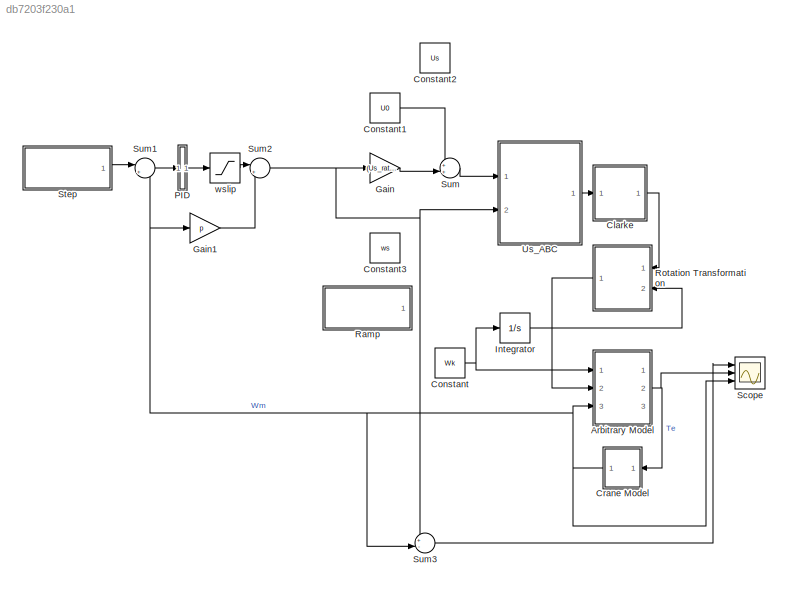
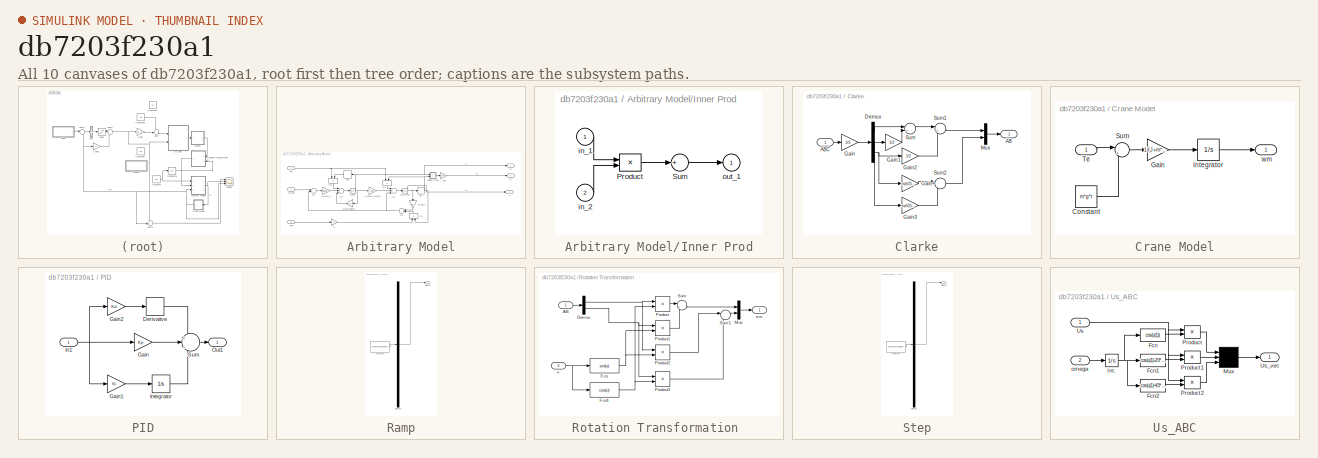
[diagram: thumbnail index - all 10 canvases of the model, root first then tree order]
MODEL slx_db7203f230a1
KIND model
CONFIG AbsTol = auto
CONFIG EnableMultiTasking = off
CONFIG FixedStep = auto
CONFIG MaxStep = auto
CONFIG MinStep = auto
CONFIG RelTol = 1e-3
CONFIG SampleTimeConstraint = Unconstrained
CONFIG Solver = VariableStepAuto
CONFIG SolverName = VariableStepAuto
CONFIG StartTime = 0.0
CONFIG StopTime = runtime
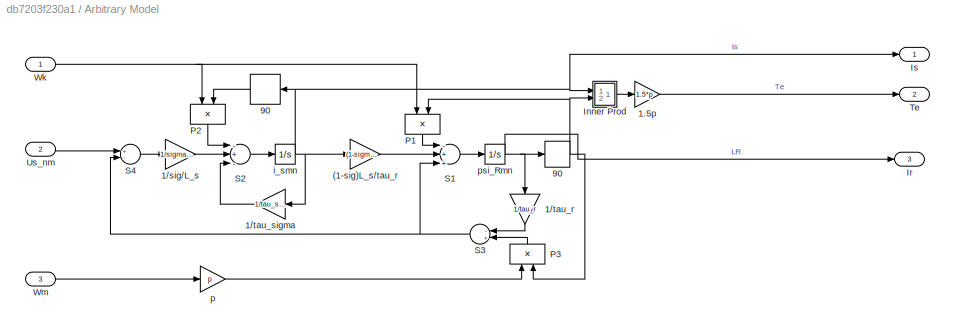
BLOCK [SubSystem] Arbitrary Model
  Ports = [3, 3]
  RequestExecContextInheritance = off
  Variant = off
BLOCK [Gain] Arbitrary Model/(1-sig)L_s//tau_r
  Gain = (1-sigma)*L_s/tau_r
BLOCK [Gain] Arbitrary Model/1.5p
  Gain = 1.5*p
BLOCK [Gain] Arbitrary Model/1//sig//L_s
  Gain = 1/sigma/L_s
BLOCK [Gain] Arbitrary Model/1//tau_r
  Gain = 1/tau_r
BLOCK [Gain] Arbitrary Model/1//tau_sigma
  Gain = 1/tau_sigma
BLOCK [StateSpace] Arbitrary Model/90
  A = []
  B = []
  C = []
  D = K
  Ports = [1, 1]
  X0 = 0
BLOCK [StateSpace] Arbitrary Model/90 
  A = []
  B = []
  C = []
  D = K
  Ports = [1, 1]
  X0 = 0
BLOCK [SubSystem] Arbitrary Model/Inner Prod
  Ports = [2, 1]
  RequestExecContextInheritance = off
  ShowPortLabels = none
  Variant = off
BLOCK [Product] Arbitrary Model/Inner Prod/Product
  Ports = [2, 1]
BLOCK [Sum] Arbitrary Model/Inner Prod/Sum
  Inputs = +
  Ports = [1, 1]
BLOCK [Inport] Arbitrary Model/Inner Prod/in_1
  IconDisplay = Port number
BLOCK [Inport] Arbitrary Model/Inner Prod/in_2
  IconDisplay = Port number
  Port = 2
BLOCK [Outport] Arbitrary Model/Inner Prod/out_1
  IconDisplay = Port number
BLOCK [Outport] Arbitrary Model/Ir
  IconDisplay = Port number
  Port = 3
BLOCK [Outport] Arbitrary Model/Is
  IconDisplay = Port number
BLOCK [Product] Arbitrary Model/P1
  Ports = [2, 1]
BLOCK [Product] Arbitrary Model/P2
  Ports = [2, 1]
BLOCK [Product] Arbitrary Model/P3
  Ports = [2, 1]
BLOCK [Sum] Arbitrary Model/S1
  Inputs = -++
  Ports = [3, 1]
BLOCK [Sum] Arbitrary Model/S2
  Inputs = -+-
  Ports = [3, 1]
BLOCK [Sum] Arbitrary Model/S3
  Inputs = -+
  Ports = [2, 1]
BLOCK [Sum] Arbitrary Model/S4
  Inputs = +-
  Ports = [2, 1]
BLOCK [Outport] Arbitrary Model/Te
  IconDisplay = Port number
  Port = 2
BLOCK [Inport] Arbitrary Model/Us_nm
  IconDisplay = Port number
  Port = 2
BLOCK [Inport] Arbitrary Model/Wk
  IconDisplay = Port number
BLOCK [Inport] Arbitrary Model/Wm
  IconDisplay = Port number
  Port = 3
BLOCK [Integrator] Arbitrary Model/i_smn
  InitialCondition = i_smn0
  Ports = [1, 1]
BLOCK [Gain] Arbitrary Model/p 
  Gain = p
BLOCK [Integrator] Arbitrary Model/psi_Rmn
  InitialCondition = psi_Rmn0
  Ports = [1, 1]
BLOCK [SubSystem] Clarke
  Ports = [1, 1]
  RequestExecContextInheritance = off
  Variant = off
BLOCK [Outport] Clarke/AB
  IconDisplay = Port number
BLOCK [Inport] Clarke/ABC
  IconDisplay = Port number
BLOCK [Demux] Clarke/Demux
  DisplayOption = bar
  Outputs = 3
  Ports = [1, 3]
BLOCK [Gain] Clarke/Gain
  Gain = 2/3
  OutDataTypeStr = Inherit: Inherit via internal rule
  ParamDataTypeStr = Inherit: Inherit via internal rule
  SaturateOnIntegerOverflow = off
BLOCK [Gain] Clarke/Gain1
  Gain = 1/2
  OutDataTypeStr = Inherit: Inherit via internal rule
  ParamDataTypeStr = Inherit: Inherit via internal rule
  SaturateOnIntegerOverflow = off
BLOCK [Gain] Clarke/Gain2
  Gain = 1/2
  OutDataTypeStr = Inherit: Inherit via internal rule
  ParamDataTypeStr = Inherit: Inherit via internal rule
  SaturateOnIntegerOverflow = off
BLOCK [Gain] Clarke/Gain3
  Gain = sqrt(3)/2
  OutDataTypeStr = Inherit: Inherit via internal rule
  ParamDataTypeStr = Inherit: Inherit via internal rule
  SaturateOnIntegerOverflow = off
BLOCK [Gain] Clarke/Gain4
  Gain = sqrt(3)/2
  OutDataTypeStr = Inherit: Inherit via internal rule
  ParamDataTypeStr = Inherit: Inherit via internal rule
  SaturateOnIntegerOverflow = off
BLOCK [Mux] Clarke/Mux
  DisplayOption = bar
  Inputs = 2
  Ports = [2, 1]
BLOCK [Sum] Clarke/Sum
  IconShape = round
  InputSameDT = off
  Inputs = |+-
  OutDataTypeStr = Inherit: Inherit via internal rule
  Ports = [2, 1]
  SaturateOnIntegerOverflow = off
BLOCK [Sum] Clarke/Sum1
  IconShape = round
  InputSameDT = off
  Inputs = |+-
  OutDataTypeStr = Inherit: Inherit via internal rule
  Ports = [2, 1]
  SaturateOnIntegerOverflow = off
BLOCK [Sum] Clarke/Sum2
  IconShape = round
  InputSameDT = off
  Inputs = |-+
  OutDataTypeStr = Inherit: Inherit via internal rule
  Ports = [2, 1]
  SaturateOnIntegerOverflow = off
BLOCK [Constant] Constant
  Value = Wk
BLOCK [Constant] Constant1
  Value = U0
BLOCK [Constant] Constant2
  Value = Us
BLOCK [Constant] Constant3
  Value = ws
BLOCK [SubSystem] Crane Model
  Ports = [1, 1]
  RequestExecContextInheritance = off
  Variant = off
BLOCK [Constant] Crane Model/Constant
  Value = m*g*r
BLOCK [Gain] Crane Model/Gain
  Gain = 1/(J+m*r^2)
  OutDataTypeStr = Inherit: Inherit via internal rule
  ParamDataTypeStr = Inherit: Inherit via internal rule
  SaturateOnIntegerOverflow = off
BLOCK [Integrator] Crane Model/Integrator
  Ports = [1, 1]
BLOCK [Sum] Crane Model/Sum
  IconShape = round
  InputSameDT = off
  Inputs = |+-
  OutDataTypeStr = Inherit: Inherit via internal rule
  Ports = [2, 1]
  SaturateOnIntegerOverflow = off
BLOCK [Inport] Crane Model/Te
  IconDisplay = Port number
BLOCK [Outport] Crane Model/wm
  IconDisplay = Port number
BLOCK [Gain] Gain
  Gain = (Us_rat-U0)/Ws_rat
  OutDataTypeStr = Inherit: Inherit via internal rule
  ParamDataTypeStr = Inherit: Inherit via internal rule
  SaturateOnIntegerOverflow = off
BLOCK [Gain] Gain1
  Gain = p
  OutDataTypeStr = Inherit: Inherit via internal rule
  ParamDataTypeStr = Inherit: Inherit via internal rule
  SaturateOnIntegerOverflow = off
BLOCK [Integrator] Integrator
  Ports = [1, 1]
BLOCK [SubSystem] PID
  Ports = [1, 1]
  RequestExecContextInheritance = off
  Variant = off
BLOCK [Derivative] PID/Derivative
BLOCK [Gain] PID/Gain
  Gain = Kp
  OutDataTypeStr = Inherit: Inherit via internal rule
  ParamDataTypeStr = Inherit: Inherit via internal rule
  SaturateOnIntegerOverflow = off
BLOCK [Gain] PID/Gain1
  Gain = Ki
  OutDataTypeStr = Inherit: Inherit via internal rule
  ParamDataTypeStr = Inherit: Inherit via internal rule
  SaturateOnIntegerOverflow = off
BLOCK [Gain] PID/Gain2
  Gain = Kd
  OutDataTypeStr = Inherit: Inherit via internal rule
  ParamDataTypeStr = Inherit: Inherit via internal rule
  SaturateOnIntegerOverflow = off
BLOCK [Inport] PID/In1
  IconDisplay = Port number
BLOCK [Integrator] PID/Integrator
  Ports = [1, 1]
BLOCK [Outport] PID/Out1
  IconDisplay = Port number
BLOCK [Sum] PID/Sum
  IconShape = round
  InputSameDT = off
  Inputs = +|+|+
  OutDataTypeStr = Inherit: Inherit via internal rule
  Ports = [3, 1]
  SaturateOnIntegerOverflow = off
BLOCK [SubSystem] Ramp
  ClipboardFcn = sigbuilder_block('clipboard');
  CloseFcn = sigbuilder_block('close');
  ContinueFcn = sigbuilder_block('continue');
  CopyFcn = sigbuilder_block('copy');
  DeleteFcn = sigbuilder_block('delete');
  LoadFcn = sigbuilder_block('load');
  MaskHideContents = on
  ModelCloseFcn = sigbuilder_block('modelClose');
  NameChangeFcn = sigbuilder_block('namechange');
  OpenFcn = sigbuilder_block('open',[437.6 199.2 550.4 400 ]);
  PauseFcn = sigbuilder_block('pause');
  Ports = [0, 1]
  PreSaveFcn = sigbuilder_block('preSave');
  RequestExecContextInheritance = off
  StartFcn = sigbuilder_block('start');
  StopFcn = sigbuilder_block('stop');
  Tag = STV Subsys
  Variant = off
BLOCK [Demux] Ramp/Demux
  Outputs = 1
  Ports = [1, 1]
  Tag = STV Demux
BLOCK [FromWorkspace] Ramp/FromWs
  SampleTime = 0
  Tag = STV FromWs
  VariableName = tuvar
  ZeroCross = on
BLOCK [Outport] Ramp/Signal 1
  IconDisplay = Port number
  Tag = STV Outport
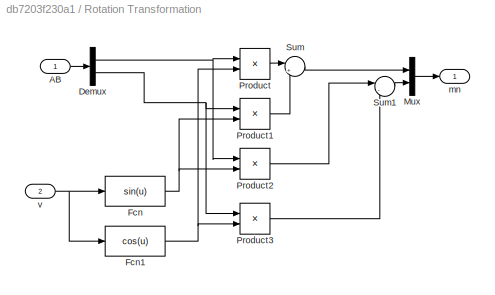
BLOCK [SubSystem] Rotation Transformation 
  Ports = [2, 1]
  RequestExecContextInheritance = off
  Variant = off
BLOCK [Inport] Rotation Transformation /AB
  IconDisplay = Port number
BLOCK [Demux] Rotation Transformation /Demux
  DisplayOption = bar
  Outputs = 2
  Ports = [1, 2]
BLOCK [Fcn] Rotation Transformation /Fcn
  Expr = sin(u)
BLOCK [Fcn] Rotation Transformation /Fcn1
  Expr = cos(u)
BLOCK [Mux] Rotation Transformation /Mux
  DisplayOption = bar
  Inputs = 2
  Ports = [2, 1]
BLOCK [Product] Rotation Transformation /Product
  InputSameDT = off
  OutDataTypeStr = Inherit: Inherit via internal rule
  Ports = [2, 1]
  RndMeth = Floor
  SaturateOnIntegerOverflow = off
BLOCK [Product] Rotation Transformation /Product1
  InputSameDT = off
  OutDataTypeStr = Inherit: Inherit via internal rule
  Ports = [2, 1]
  RndMeth = Floor
  SaturateOnIntegerOverflow = off
BLOCK [Product] Rotation Transformation /Product2
  InputSameDT = off
  OutDataTypeStr = Inherit: Inherit via internal rule
  Ports = [2, 1]
  RndMeth = Floor
  SaturateOnIntegerOverflow = off
BLOCK [Product] Rotation Transformation /Product3
  InputSameDT = off
  OutDataTypeStr = Inherit: Inherit via internal rule
  Ports = [2, 1]
  RndMeth = Floor
  SaturateOnIntegerOverflow = off
BLOCK [Sum] Rotation Transformation /Sum
  IconShape = round
  InputSameDT = off
  Inputs = |++
  OutDataTypeStr = Inherit: Inherit via internal rule
  Ports = [2, 1]
  SaturateOnIntegerOverflow = off
BLOCK [Sum] Rotation Transformation /Sum1
  IconShape = round
  InputSameDT = off
  Inputs = |-+
  OutDataTypeStr = Inherit: Inherit via internal rule
  Ports = [2, 1]
  SaturateOnIntegerOverflow = off
BLOCK [Outport] Rotation Transformation /mn
  IconDisplay = Port number
BLOCK [Inport] Rotation Transformation /v
  IconDisplay = Port number
  Port = 2
BLOCK [Scope] Scope
  NumInputPorts = 3
  Ports = [3]
  ScopeSpecificationString = Simulink.scopes.TimeScopeBlockCfg('CurrentConfiguration', extmgr.ConfigurationSet(extmgr.Configuration('Core','General UI',true),extmgr.Configuration('Core','Source UI',true),extmgr.Configuration('Sources','WiredSimulink',true),extmgr.Configuration('Visuals','Time Domain',true,'SerializedDisplays',{struct('MinYLimReal','-24.9132','MaxYLimReal','57.21258','YLabelReal','','MinYLimMag','0.00000','Max...<+2750ch>
BLOCK [SubSystem] Step
  ClipboardFcn = sigbuilder_block('clipboard');
  CloseFcn = sigbuilder_block('close');
  ContinueFcn = sigbuilder_block('continue');
  CopyFcn = sigbuilder_block('copy');
  DeleteFcn = sigbuilder_block('delete');
  LoadFcn = sigbuilder_block('load');
  MaskHideContents = on
  ModelCloseFcn = sigbuilder_block('modelClose');
  NameChangeFcn = sigbuilder_block('namechange');
  OpenFcn = sigbuilder_block('open',[437.6 199.2 550.4 400 ]);
  PauseFcn = sigbuilder_block('pause');
  Ports = [0, 1]
  PreSaveFcn = sigbuilder_block('preSave');
  RequestExecContextInheritance = off
  StartFcn = sigbuilder_block('start');
  StopFcn = sigbuilder_block('stop');
  Tag = STV Subsys
  Variant = off
BLOCK [Demux] Step/Demux
  Outputs = 1
  Ports = [1, 1]
  Tag = STV Demux
BLOCK [FromWorkspace] Step/FromWs
  SampleTime = 0
  Tag = STV FromWs
  VariableName = tuvar
  ZeroCross = on
BLOCK [Outport] Step/Signal 1
  IconDisplay = Port number
  Tag = STV Outport
BLOCK [Sum] Sum
  IconShape = round
  InputSameDT = off
  Inputs = ++|
  OutDataTypeStr = Inherit: Inherit via internal rule
  Ports = [2, 1]
  SaturateOnIntegerOverflow = off
BLOCK [Sum] Sum1
  IconShape = round
  InputSameDT = off
  Inputs = |+-
  OutDataTypeStr = Inherit: Inherit via internal rule
  Ports = [2, 1]
  SaturateOnIntegerOverflow = off
BLOCK [Sum] Sum2
  IconShape = round
  InputSameDT = off
  Inputs = |++
  OutDataTypeStr = Inherit: Inherit via internal rule
  Ports = [2, 1]
  SaturateOnIntegerOverflow = off
BLOCK [Sum] Sum3
  IconShape = round
  InputSameDT = off
  Inputs = +-|
  OutDataTypeStr = Inherit: Inherit via internal rule
  Ports = [2, 1]
  SaturateOnIntegerOverflow = off
BLOCK [SubSystem] Us_ABC
  Ports = [2, 1]
  RequestExecContextInheritance = off
  Variant = off
BLOCK [Fcn] Us_ABC/Fcn
  Expr = cos(u(1))
BLOCK [Fcn] Us_ABC/Fcn1
  Expr = cos(u(1)-2/3*pi)
BLOCK [Fcn] Us_ABC/Fcn2
  Expr = cos(u(1)-4/3*pi)
BLOCK [Integrator] Us_ABC/Int.
  Ports = [1, 1]
BLOCK [Mux] Us_ABC/Mux
  Inputs = 3
  Ports = [3, 1]
BLOCK [Product] Us_ABC/Product
  Ports = [2, 1]
BLOCK [Product] Us_ABC/Product1
  Ports = [2, 1]
BLOCK [Product] Us_ABC/Product2
  Ports = [2, 1]
BLOCK [Inport] Us_ABC/Us
  IconDisplay = Port number
BLOCK [Outport] Us_ABC/Us_vec
  IconDisplay = Port number
BLOCK [Inport] Us_ABC/omega
  IconDisplay = Port number
  Port = 2
BLOCK [Saturate] wslip
  InputPortMap = u0
  LowerLimit = -Wslip_max
  Ports = [1, 1]
  UpperLimit = Wslip_max
LINE Arbitrary Model/(1-sig)L_s//tau_r:1 -> Arbitrary Model/S1:2
LINE Arbitrary Model/1.5p:1 -> Arbitrary Model/Te:1
LINE Arbitrary Model/1//sig//L_s:1 -> Arbitrary Model/S2:2
LINE Arbitrary Model/1//tau_r:1 -> Arbitrary Model/S3:1
LINE Arbitrary Model/1//tau_sigma:1 -> Arbitrary Model/S2:3
NET Arbitrary Model/90 :1 -> Arbitrary Model/Inner Prod:2, Arbitrary Model/P1:2, Arbitrary Model/P3:2
LINE Arbitrary Model/90:1 -> Arbitrary Model/P2:2
LINE Arbitrary Model/Inner Prod/Product:1 -> Arbitrary Model/Inner Prod/Sum:1
LINE Arbitrary Model/Inner Prod/Sum:1 -> Arbitrary Model/Inner Prod/out_1:1
LINE Arbitrary Model/Inner Prod/in_1:1 -> Arbitrary Model/Inner Prod/Product:1
LINE Arbitrary Model/Inner Prod/in_2:1 -> Arbitrary Model/Inner Prod/Product:2
LINE Arbitrary Model/Inner Prod:1 -> Arbitrary Model/1.5p:1
LINE Arbitrary Model/P1:1 -> Arbitrary Model/S1:1
LINE Arbitrary Model/P2:1 -> Arbitrary Model/S2:1
LINE Arbitrary Model/P3:1 -> Arbitrary Model/S3:2
LINE Arbitrary Model/S1:1 -> Arbitrary Model/psi_Rmn:1
LINE Arbitrary Model/S2:1 -> Arbitrary Model/i_smn:1
NET Arbitrary Model/S3:1 -> Arbitrary Model/S1:3, Arbitrary Model/S4:2
LINE Arbitrary Model/S4:1 -> Arbitrary Model/1//sig//L_s:1
LINE Arbitrary Model/Us_nm:1 -> Arbitrary Model/S4:1
NET Arbitrary Model/Wk:1 -> Arbitrary Model/P1:1, Arbitrary Model/P2:1
LINE Arbitrary Model/Wm:1 -> Arbitrary Model/p :1
NET Arbitrary Model/i_smn:1 -> Arbitrary Model/(1-sig)L_s//tau_r:1, Arbitrary Model/1//tau_sigma:1, Arbitrary Model/90:1, Arbitrary Model/Inner Prod:1, Arbitrary Model/Is:1
LINE Arbitrary Model/p :1 -> Arbitrary Model/P3:1
NET Arbitrary Model/psi_Rmn:1 -> Arbitrary Model/1//tau_r:1, Arbitrary Model/90 :1, Arbitrary Model/Ir:1
NET Arbitrary Model:2 -> Crane Model:1, Scope:2
LINE Clarke/ABC:1 -> Clarke/Gain:1
LINE Clarke/Demux:1 -> Clarke/Sum:1
NET Clarke/Demux:2 -> Clarke/Gain1:1, Clarke/Gain3:1
NET Clarke/Demux:3 -> Clarke/Gain2:1, Clarke/Gain4:1
LINE Clarke/Gain1:1 -> Clarke/Sum:2
LINE Clarke/Gain2:1 -> Clarke/Sum1:2
LINE Clarke/Gain3:1 -> Clarke/Sum2:2
LINE Clarke/Gain4:1 -> Clarke/Sum2:1
LINE Clarke/Gain:1 -> Clarke/Demux:1
LINE Clarke/Mux:1 -> Clarke/AB:1
LINE Clarke/Sum1:1 -> Clarke/Mux:1
LINE Clarke/Sum2:1 -> Clarke/Mux:2
LINE Clarke/Sum:1 -> Clarke/Sum1:1
LINE Clarke:1 -> Rotation Transformation :1
LINE Constant1:1 -> Sum:1
NET Constant:1 -> Arbitrary Model:1, Integrator:1
LINE Crane Model/Constant:1 -> Crane Model/Sum:2
LINE Crane Model/Gain:1 -> Crane Model/Integrator:1
LINE Crane Model/Integrator:1 -> Crane Model/wm:1
LINE Crane Model/Sum:1 -> Crane Model/Gain:1
LINE Crane Model/Te:1 -> Crane Model/Sum:1
NET Crane Model:1 -> Arbitrary Model:3, Gain1:1, Scope:3, Sum1:2, Sum3:2
LINE Gain1:1 -> Sum2:2
LINE Gain:1 -> Sum:2
LINE Integrator:1 -> Rotation Transformation :2
LINE PID/Derivative:1 -> PID/Sum:1
LINE PID/Gain1:1 -> PID/Integrator:1
LINE PID/Gain2:1 -> PID/Derivative:1
LINE PID/Gain:1 -> PID/Sum:2
NET PID/In1:1 -> PID/Gain1:1, PID/Gain2:1, PID/Gain:1
LINE PID/Integrator:1 -> PID/Sum:3
LINE PID/Sum:1 -> PID/Out1:1
LINE PID:1 -> wslip:1
LINE Rotation Transformation /AB:1 -> Rotation Transformation /Demux:1
NET Rotation Transformation /Demux:1 -> Rotation Transformation /Product2:1, Rotation Transformation /Product:1
NET Rotation Transformation /Demux:2 -> Rotation Transformation /Product1:1, Rotation Transformation /Product3:1
NET Rotation Transformation /Fcn1:1 -> Rotation Transformation /Product3:2, Rotation Transformation /Product:2
NET Rotation Transformation /Fcn:1 -> Rotation Transformation /Product1:2, Rotation Transformation /Product2:2
LINE Rotation Transformation /Mux:1 -> Rotation Transformation /mn:1
LINE Rotation Transformation /Product1:1 -> Rotation Transformation /Sum:2
LINE Rotation Transformation /Product2:1 -> Rotation Transformation /Sum1:1
LINE Rotation Transformation /Product3:1 -> Rotation Transformation /Sum1:2
LINE Rotation Transformation /Product:1 -> Rotation Transformation /Sum:1
LINE Rotation Transformation /Sum1:1 -> Rotation Transformation /Mux:2
LINE Rotation Transformation /Sum:1 -> Rotation Transformation /Mux:1
NET Rotation Transformation /v:1 -> Rotation Transformation /Fcn1:1, Rotation Transformation /Fcn:1
LINE Rotation Transformation :1 -> Arbitrary Model:2
LINE Step:1 -> Sum1:1
LINE Sum1:1 -> PID:1
NET Sum2:1 -> Gain:1, Sum3:1, Us_ABC:2
LINE Sum3:1 -> Scope:1
LINE Sum:1 -> Us_ABC:1
LINE Us_ABC/Fcn1:1 -> Us_ABC/Product1:2
LINE Us_ABC/Fcn2:1 -> Us_ABC/Product2:2
LINE Us_ABC/Fcn:1 -> Us_ABC/Product:2
NET Us_ABC/Int.:1 -> Us_ABC/Fcn1:1, Us_ABC/Fcn2:1, Us_ABC/Fcn:1
LINE Us_ABC/Mux:1 -> Us_ABC/Us_vec:1
LINE Us_ABC/Product1:1 -> Us_ABC/Mux:2
LINE Us_ABC/Product2:1 -> Us_ABC/Mux:3
LINE Us_ABC/Product:1 -> Us_ABC/Mux:1
NET Us_ABC/Us:1 -> Us_ABC/Product1:1, Us_ABC/Product2:1, Us_ABC/Product:1
LINE Us_ABC/omega:1 -> Us_ABC/Int.:1
LINE Us_ABC:1 -> Clarke:1
LINE wslip:1 -> Sum2:1
note: NET lines group one-source signal fan-out (src -> all destinations, sorted); 1:1 wires keep LINE
